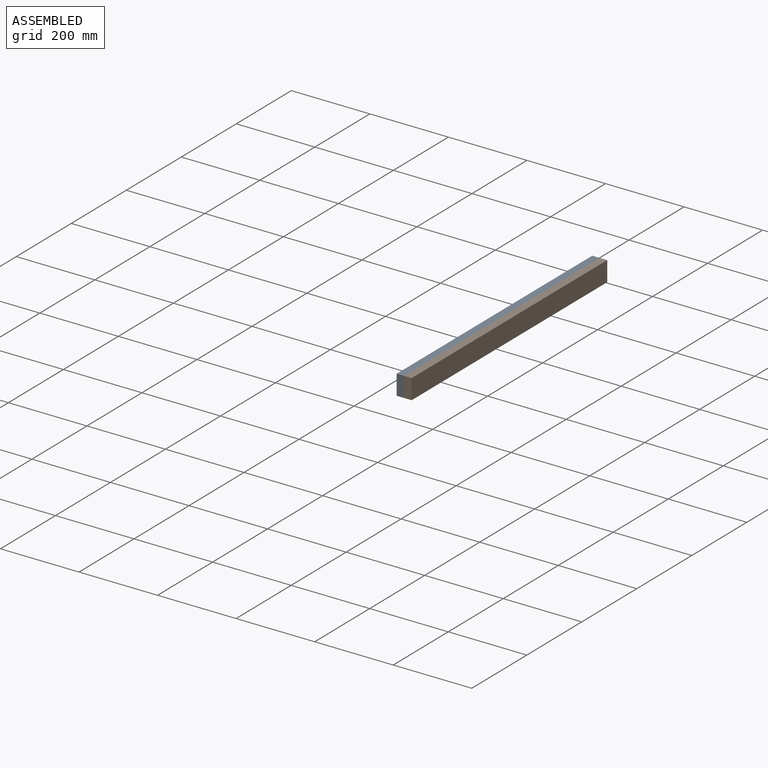
[diagram: assembled view]
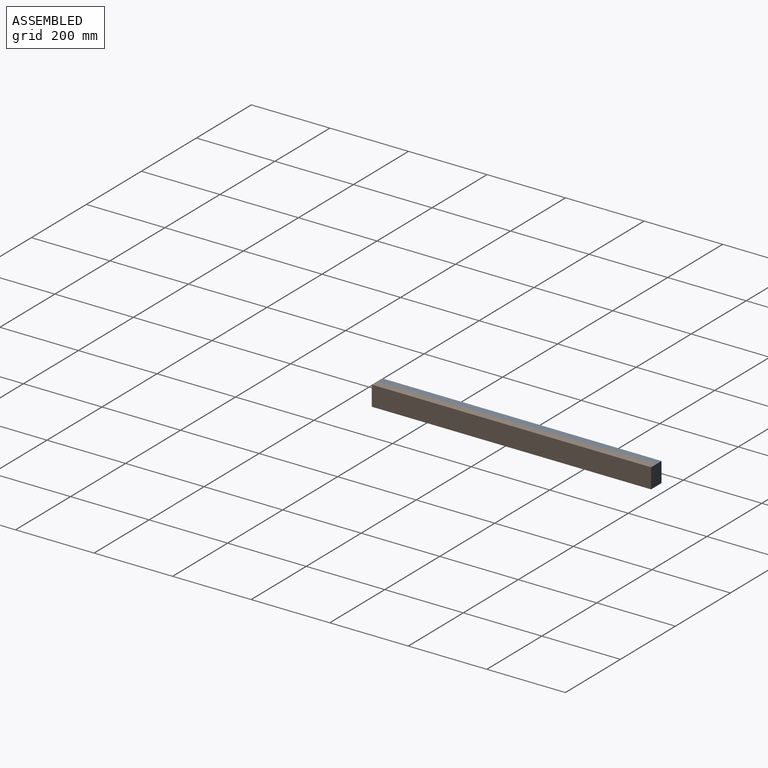
[diagram: assembled view, second angle]
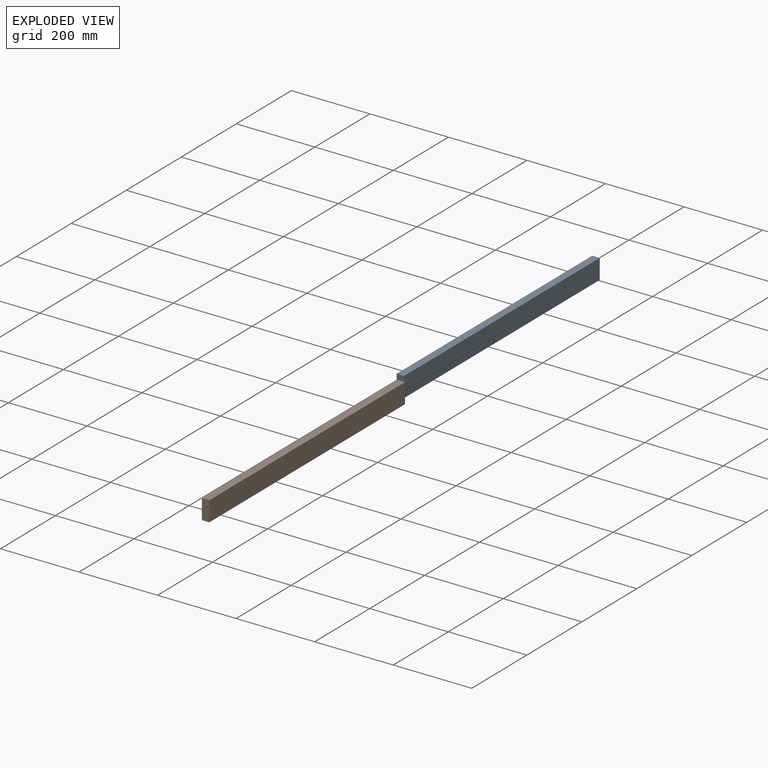
[diagram: exploded view]
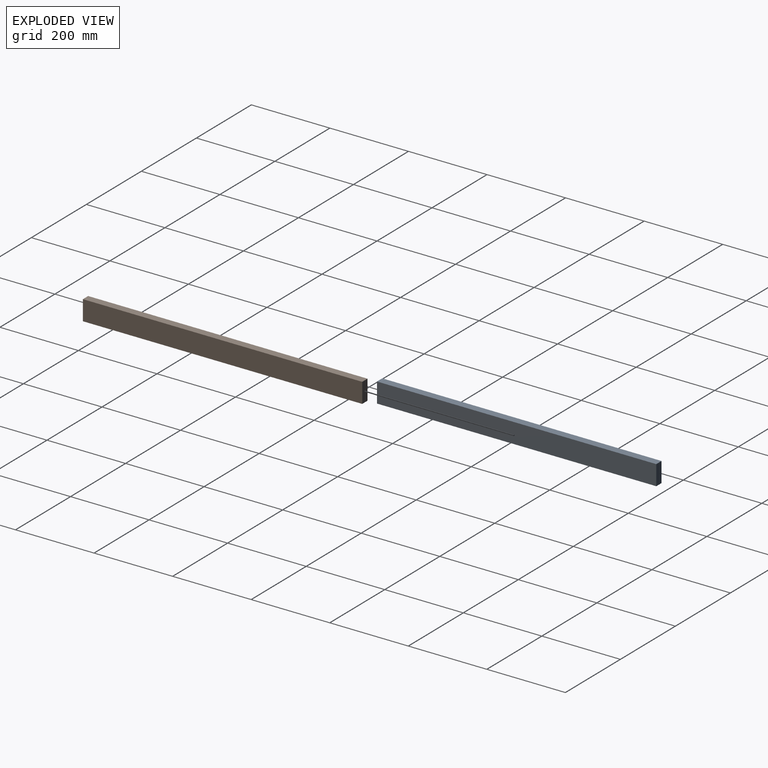
[diagram: exploded view, second angle]
ASSEMBLY  parts=2 mates=3
PART A: 6 faces, bbox 19.1x711.2x50.8 mm
  f0: plane 711.2x19.05mm, normal (0,0,1), area 13548.4mm2, adj f1,f3,f4,f5
  f1: plane 50.8x19.05mm, normal (0,-1,0), area 967.7mm2, adj f0,f2,f4,f5
  f2: plane 711.2x19.05mm, normal (0,0,-1), area 13548.4mm2, adj f1,f3,f4,f5
  f3: plane 50.8x19.05mm, normal (0,1,0), area 967.7mm2, adj f0,f2,f4,f5
  f4: plane 711.2x50.8mm, normal (1,0,0), area 36129mm2, adj f0,f1,f2,f3
  f5: plane 711.2x50.8mm, normal (-1,0,0), area 36129mm2, adj f0,f1,f2,f3
PART B: same geometry as A
PLACE A t=(57.15,0,0)mm
PLACE B t=(76.2,0,0)mm
MATE planar A.f1 <-> B.f1  axis (0,-1,0) through (66.68,-326.48,-201.58)mm
MATE planar A.f0 <-> B.f0  axis (0,0,1) through (66.68,29.12,-176.18)mm
MATE planar A.f4 <-> B.f5  axis (1,0,0) through (76.2,29.12,-201.58)mm
